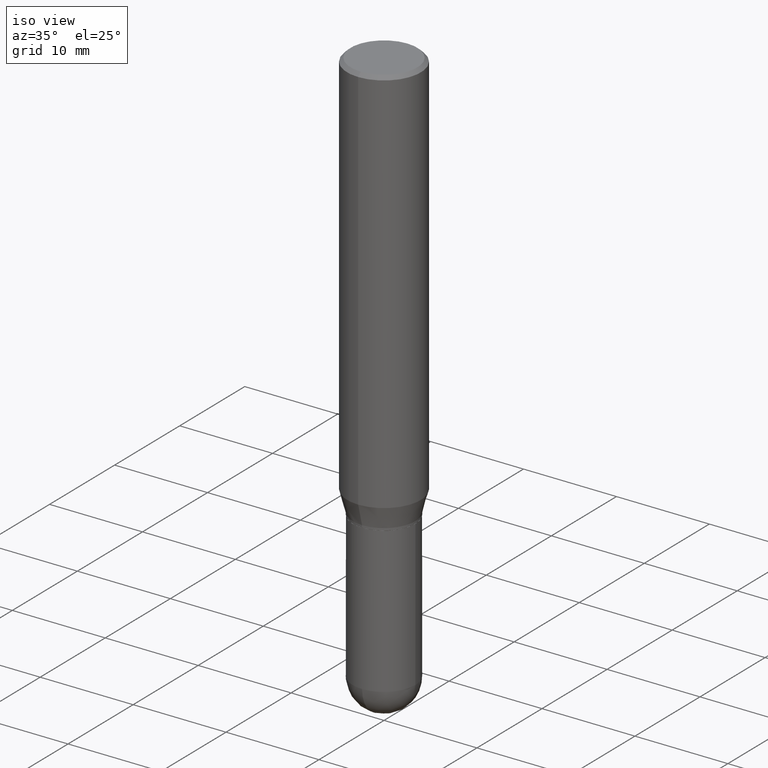
[diagram: clean part render]
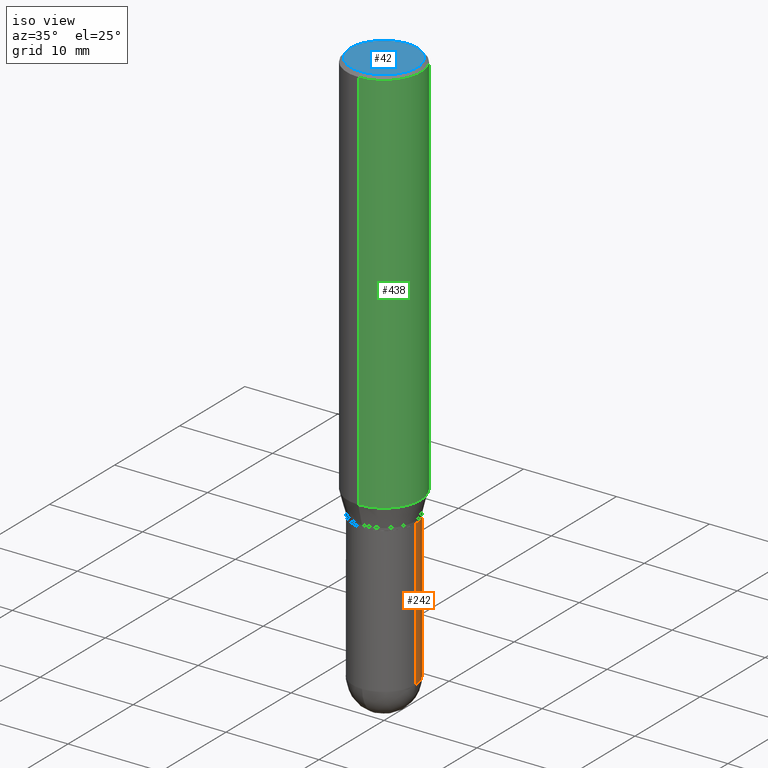
[diagram: same view with three faces highlighted in distinct colors, each labeled with its STEP entity id]
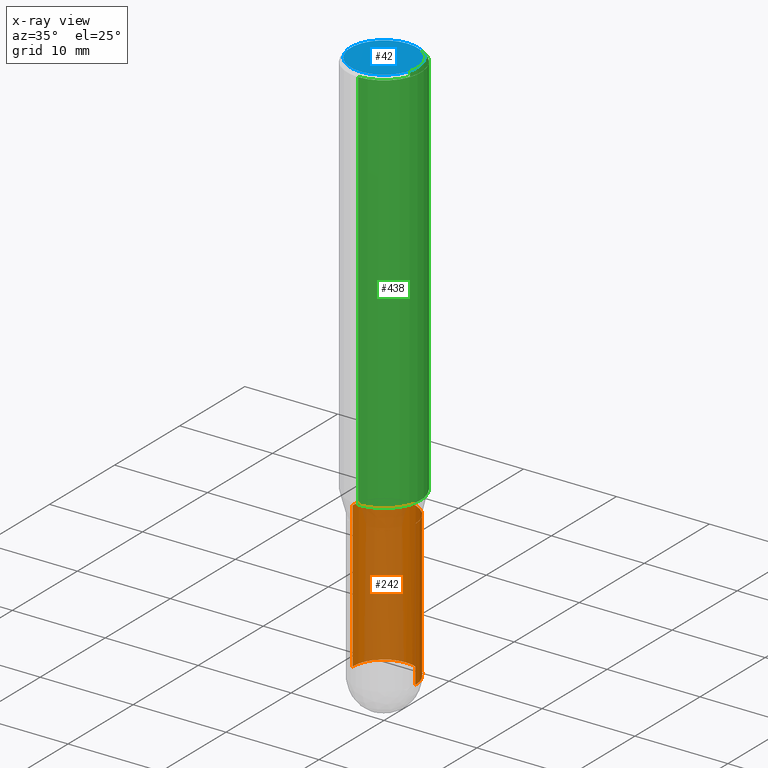
[diagram: x-ray of the same camera — body ghosted, the three highlighted faces saturated]
A machine part, iso view with three faces highlighted in distinct colors.
The next image is the same camera in x-ray (body ghosted, the three faces saturated) — at least one of them is partly hidden behind the body in this view.
Their STEP definitions:

[orange] entity #242 — the highlighted cylindrical surface (partial cylindrical patch) has radius 3.3731 mm, axis along (-0, 0, 1).
#3 = AXIS2_PLACEMENT_3D ( 'NONE', #153, #104, #146 ) ;
#4 = CARTESIAN_POINT ( 'NONE',  ( 0.1328000000000000014, -7.037429786572241288E-15, -1.750000000000000222 ) ) ;
#11 = VERTEX_POINT ( 'NONE', #184 ) ;
#22 = VERTEX_POINT ( 'NONE', #457 ) ;
#26 = AXIS2_PLACEMENT_3D ( 'NONE', #341, #80, #344 ) ;
#39 = CYLINDRICAL_SURFACE ( 'NONE', #26, 0.1328000000000000014 ) ;
#41 = FACE_OUTER_BOUND ( 'NONE', #49, .T. ) ;
#48 = CARTESIAN_POINT ( 'NONE',  ( 0.1328000000000000014, -9.273374435967362223E-16, 6.475562758257002307E-30 ) ) ;
#49 = EDGE_LOOP ( 'NONE', ( #411, #176, #124, #205, #264 ) ) ;
#50 = CARTESIAN_POINT ( 'NONE',  ( -0.1328000000000000014, -6.243962731053086807E-15, -2.367199999999999971 ) ) ;
#75 = CARTESIAN_POINT ( 'NONE',  ( -0.1328000000000000014, 9.436007530894130566E-16, -6.532345799858513932E-30 ) ) ;
#80 = DIRECTION ( 'NONE',  ( -2.445468806185136597E-29, 3.491481338843145583E-15, 1.000000000000000000 ) ) ;
#90 = DIRECTION ( 'NONE',  ( 1.000000000000000000, -6.982962677686263555E-15, 0.000000000000000000 ) ) ;
#104 = DIRECTION ( 'NONE',  ( -2.445468806185136597E-29, 3.491481338843145583E-15, 1.000000000000000000 ) ) ;
#124 = ORIENTED_EDGE ( 'NONE', *, *, #129, .F. ) ;
#129 = EDGE_CURVE ( 'NONE', #210, #11, #387, .T. ) ;
#144 = EDGE_CURVE ( 'NONE', #292, #11, #471, .T. ) ;
#146 = DIRECTION ( 'NONE',  ( 1.000000000000000000, -6.982962677686263555E-15, 0.000000000000000000 ) ) ;
#153 = CARTESIAN_POINT ( 'NONE',  ( 5.788913758001455526E-29, -8.265034625309493084E-15, -2.367199999999999971 ) ) ;
#175 = EDGE_CURVE ( 'NONE', #22, #299, #453, .T. ) ;
#176 = ORIENTED_EDGE ( 'NONE', *, *, #144, .T. ) ;
#184 = CARTESIAN_POINT ( 'NONE',  ( -0.1328000000000000014, -6.243962731053086018E-15, -1.750000000000000222 ) ) ;
#202 = LINE ( 'NONE', #48, #373 ) ;
#205 = ORIENTED_EDGE ( 'NONE', *, *, #300, .F. ) ;
#210 = VERTEX_POINT ( 'NONE', #4 ) ;
#229 = CARTESIAN_POINT ( 'NONE',  ( 4.279570410823989044E-29, -6.110092342975505460E-15, -1.750000000000000222 ) ) ;
#235 = AXIS2_PLACEMENT_3D ( 'NONE', #229, #266, #437 ) ;
#239 = DIRECTION ( 'NONE',  ( -2.445468806185136877E-29, 3.491481338843145188E-15, 1.000000000000000000 ) ) ;
#242 = ADVANCED_FACE ( 'NONE', ( #41 ), #39, .T. ) ;
#243 = CARTESIAN_POINT ( 'NONE',  ( 9.273374435967940064E-16, 0.1327999999999917302, -2.367200000000000415 ) ) ;
#264 = ORIENTED_EDGE ( 'NONE', *, *, #175, .T. ) ;
#266 = DIRECTION ( 'NONE',  ( -2.445468806185136597E-29, 3.491481338843145583E-15, 1.000000000000000000 ) ) ;
#292 = VERTEX_POINT ( 'NONE', #50 ) ;
#299 = VERTEX_POINT ( 'NONE', #243 ) ;
#300 = EDGE_CURVE ( 'NONE', #22, #210, #202, .T. ) ;
#314 = DIRECTION ( 'NONE',  ( -2.445468806185136597E-29, 3.491481338843145583E-15, 1.000000000000000000 ) ) ;
#341 = CARTESIAN_POINT ( 'NONE',  ( 0.000000000000000000, 0.000000000000000000, 0.000000000000000000 ) ) ;
#344 = DIRECTION ( 'NONE',  ( 1.000000000000000000, -6.982962677686266711E-15, 4.876176775795935232E-29 ) ) ;
#373 = VECTOR ( 'NONE', #239, 39.37007874015748143 ) ;
#387 = CIRCLE ( 'NONE', #235, 0.1328000000000000014 ) ;
#389 = EDGE_CURVE ( 'NONE', #299, #292, #488, .T. ) ;
#411 = ORIENTED_EDGE ( 'NONE', *, *, #389, .T. ) ;
#437 = DIRECTION ( 'NONE',  ( 1.000000000000000000, -6.982962677686263555E-15, 0.000000000000000000 ) ) ;
#446 = CARTESIAN_POINT ( 'NONE',  ( 5.788913758001455526E-29, -8.265034625309493084E-15, -2.367199999999999971 ) ) ;
#453 = CIRCLE ( 'NONE', #3, 0.1328000000000000014 ) ;
#457 = CARTESIAN_POINT ( 'NONE',  ( 0.1328000000000000014, -8.114900927739235889E-15, -2.367199999999999971 ) ) ;
#471 = LINE ( 'NONE', #75, #477 ) ;
#474 = AXIS2_PLACEMENT_3D ( 'NONE', #446, #314, #90 ) ;
#477 = VECTOR ( 'NONE', #510, 39.37007874015748143 ) ;
#488 = CIRCLE ( 'NONE', #474, 0.1328000000000000014 ) ;
#510 = DIRECTION ( 'NONE',  ( -2.445468806185136877E-29, 3.491481338843145188E-15, 1.000000000000000000 ) ) ;

[blue] entity #42 — the highlighted planar face has unit normal (0, -0, -1).
#20 = DIRECTION ( 'NONE',  ( 2.445566685211259906E-29, -3.491341170506808259E-15, -1.000000000000000000 ) ) ;
#42 = ADVANCED_FACE ( 'NONE', ( #62 ), #217, .F. ) ;
#43 = DIRECTION ( 'NONE',  ( -2.445566685211260187E-29, 3.491341170506808259E-15, 1.000000000000000000 ) ) ;
#62 = FACE_OUTER_BOUND ( 'NONE', #284, .T. ) ;
#87 = CARTESIAN_POINT ( 'NONE',  ( -1.020499077168515012E-15, -0.1412499999999999867, 3.422095079102854062E-16 ) ) ;
#89 = EDGE_CURVE ( 'NONE', #399, #260, #193, .T. ) ;
#134 = ORIENTED_EDGE ( 'NONE', *, *, #196, .T. ) ;
#148 = AXIS2_PLACEMENT_3D ( 'NONE', #501, #331, #498 ) ;
#172 = ORIENTED_EDGE ( 'NONE', *, *, #89, .T. ) ;
#180 = DIRECTION ( 'NONE',  ( 6.982962677686265922E-15, 1.000000000000000000, -3.491341170506808259E-15 ) ) ;
#193 = CIRCLE ( 'NONE', #148, 0.1412499999999999867 ) ;
#196 = EDGE_CURVE ( 'NONE', #260, #399, #326, .T. ) ;
#201 = AXIS2_PLACEMENT_3D ( 'NONE', #503, #20, #180 ) ;
#217 = PLANE ( 'NONE',  #201 ) ;
#260 = VERTEX_POINT ( 'NONE', #87 ) ;
#284 = EDGE_LOOP ( 'NONE', ( #172, #134 ) ) ;
#326 = CIRCLE ( 'NONE', #426, 0.1412499999999999867 ) ;
#331 = DIRECTION ( 'NONE',  ( -2.445566685211260187E-29, 3.491341170506808259E-15, 1.000000000000000000 ) ) ;
#357 = CARTESIAN_POINT ( 'NONE',  ( 1.038715698305832292E-15, 0.1412499999999999867, -6.440943727578878808E-16 ) ) ;
#399 = VERTEX_POINT ( 'NONE', #357 ) ;
#426 = AXIS2_PLACEMENT_3D ( 'NONE', #505, #43, #475 ) ;
#475 = DIRECTION ( 'NONE',  ( -6.982962677686265922E-15, -1.000000000000000000, 3.491341170506808259E-15 ) ) ;
#498 = DIRECTION ( 'NONE',  ( -6.982962677686265922E-15, -1.000000000000000000, 3.491341170506808259E-15 ) ) ;
#501 = CARTESIAN_POINT ( 'NONE',  ( 3.691397841204002172E-45, -5.269915286976591223E-31, -1.509424324238012373E-16 ) ) ;
#503 = CARTESIAN_POINT ( 'NONE',  ( 9.863434782231850151E-16, 0.1412499999999999867, -5.686231565459872991E-16 ) ) ;
#505 = CARTESIAN_POINT ( 'NONE',  ( 3.691397841204002172E-45, -5.269915286976591223E-31, -1.509424324238012373E-16 ) ) ;

[green] entity #438 — the highlighted cylindrical surface (partial cylindrical patch) has radius 3.9688 mm, axis along (-0, 0, 1).
#1 = CIRCLE ( 'NONE', #288, 0.1562500000000000000 ) ;
#16 = VECTOR ( 'NONE', #461, 39.37007874015748143 ) ;
#19 = CARTESIAN_POINT ( 'NONE',  ( -1.091087918388438547E-15, -0.1562500000000057454, -1.652483408562509304 ) ) ;
#29 = EDGE_CURVE ( 'NONE', #421, #370, #416, .T. ) ;
#56 = CYLINDRICAL_SURFACE ( 'NONE', #394, 0.1562500000000000000 ) ;
#59 = CARTESIAN_POINT ( 'NONE',  ( 0.000000000000000000, 0.000000000000000000, 0.000000000000000000 ) ) ;
#63 = DIRECTION ( 'NONE',  ( -6.982962677686265133E-15, -1.000000000000000000, 3.491341170506808654E-15 ) ) ;
#98 = VERTEX_POINT ( 'NONE', #303 ) ;
#100 = DIRECTION ( 'NONE',  ( -2.445566685211260187E-29, 3.491341170506808259E-15, 1.000000000000000000 ) ) ;
#116 = CARTESIAN_POINT ( 'NONE',  ( 1.110223024625156343E-15, 0.1562500000000000000, -5.455220578916888275E-16 ) ) ;
#133 = CARTESIAN_POINT ( 'NONE',  ( -1.091087918388478779E-15, -0.1562500000000000833, -0.01499999999999960566 ) ) ;
#140 = DIRECTION ( 'NONE',  ( -6.982962677686265133E-15, -1.000000000000000000, 3.496765431890256920E-15 ) ) ;
#174 = LINE ( 'NONE', #458, #16 ) ;
#190 = AXIS2_PLACEMENT_3D ( 'NONE', #363, #100, #140 ) ;
#204 = DIRECTION ( 'NONE',  ( -2.445566685211260467E-29, 3.491341170506808259E-15, 1.000000000000000000 ) ) ;
#221 = EDGE_LOOP ( 'NONE', ( #256, #464, #244, #486 ) ) ;
#244 = ORIENTED_EDGE ( 'NONE', *, *, #424, .F. ) ;
#256 = ORIENTED_EDGE ( 'NONE', *, *, #29, .T. ) ;
#261 = DIRECTION ( 'NONE',  ( -6.982962677686265133E-15, -1.000000000000000000, 3.496765431890256920E-15 ) ) ;
#288 = AXIS2_PLACEMENT_3D ( 'NONE', #463, #497, #261 ) ;
#297 = VECTOR ( 'NONE', #204, 39.37007874015748143 ) ;
#303 = CARTESIAN_POINT ( 'NONE',  ( 1.110223024625197364E-15, 0.1562499999999999445, -0.01500000000000069854 ) ) ;
#313 = LINE ( 'NONE', #116, #297 ) ;
#328 = FACE_OUTER_BOUND ( 'NONE', #221, .T. ) ;
#360 = CARTESIAN_POINT ( 'NONE',  ( 1.110223024625197167E-15, 0.1562499999999942824, -1.652483408562510414 ) ) ;
#363 = CARTESIAN_POINT ( 'NONE',  ( 4.041258371844822097E-29, -5.769383357893714632E-15, -1.652483408562509748 ) ) ;
#370 = VERTEX_POINT ( 'NONE', #360 ) ;
#371 = EDGE_CURVE ( 'NONE', #370, #98, #313, .T. ) ;
#394 = AXIS2_PLACEMENT_3D ( 'NONE', #59, #494, #63 ) ;
#416 = CIRCLE ( 'NONE', #190, 0.1562500000000000000 ) ;
#421 = VERTEX_POINT ( 'NONE', #19 ) ;
#424 = EDGE_CURVE ( 'NONE', #445, #98, #1, .T. ) ;
#438 = ADVANCED_FACE ( 'NONE', ( #328 ), #56, .T. ) ;
#445 = VERTEX_POINT ( 'NONE', #133 ) ;
#458 = CARTESIAN_POINT ( 'NONE',  ( -1.091087918388478976E-15, -0.1562500000000000000, 5.455220578916888275E-16 ) ) ;
#461 = DIRECTION ( 'NONE',  ( -2.445566685211260467E-29, 3.491341170506808259E-15, 1.000000000000000000 ) ) ;
#463 = CARTESIAN_POINT ( 'NONE',  ( 3.668350027816927222E-31, -5.237011755760265859E-17, -0.01500000000000015210 ) ) ;
#464 = ORIENTED_EDGE ( 'NONE', *, *, #371, .T. ) ;
#483 = EDGE_CURVE ( 'NONE', #421, #445, #174, .T. ) ;
#486 = ORIENTED_EDGE ( 'NONE', *, *, #483, .F. ) ;
#494 = DIRECTION ( 'NONE',  ( -2.445566685211260187E-29, 3.491341170506808259E-15, 1.000000000000000000 ) ) ;
#497 = DIRECTION ( 'NONE',  ( -2.445566685211260187E-29, 3.491341170506808259E-15, 1.000000000000000000 ) ) ;